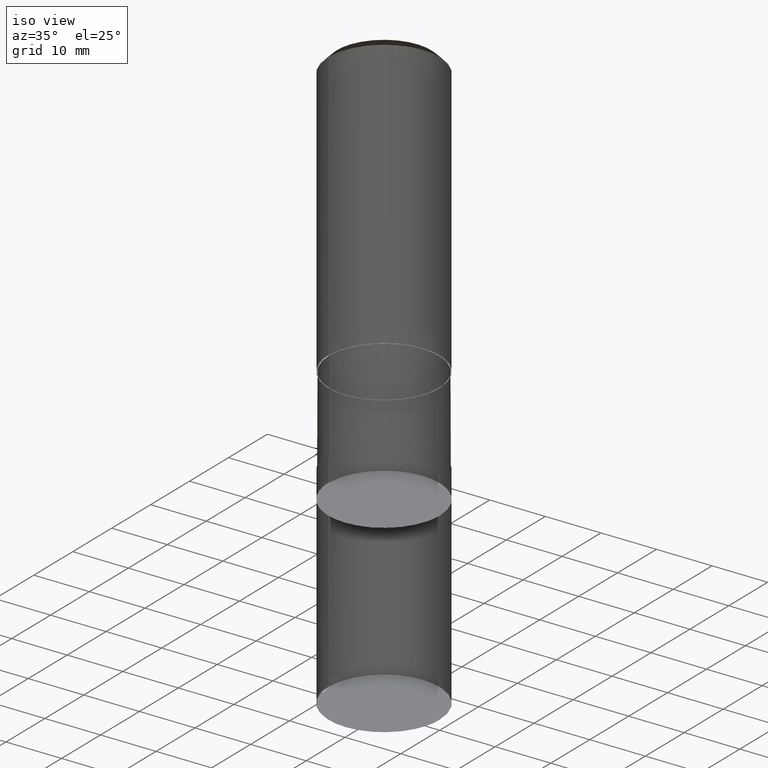
[diagram: clean part render]
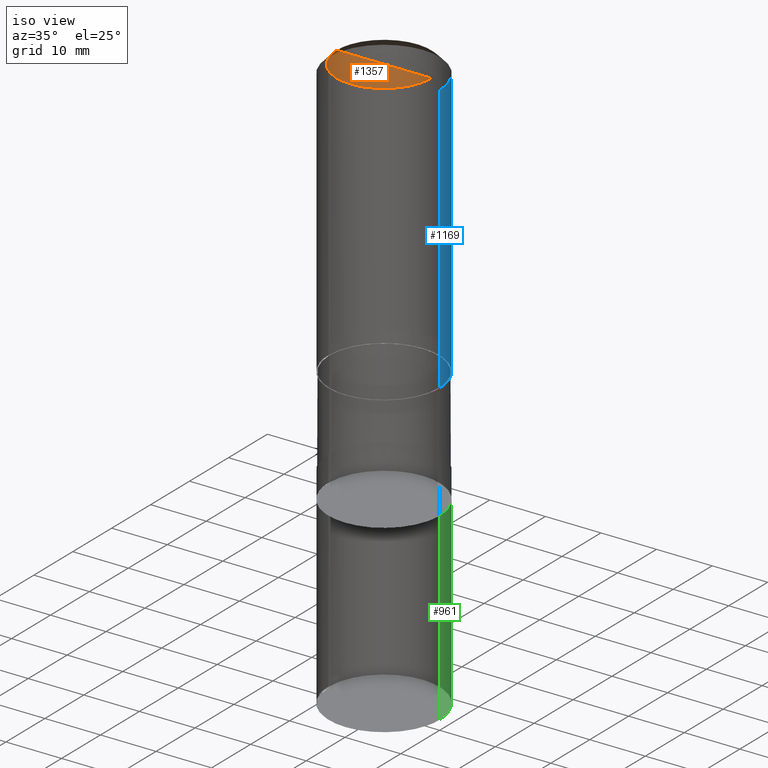
[diagram: same view with three faces highlighted in distinct colors, each labeled with its STEP entity id]
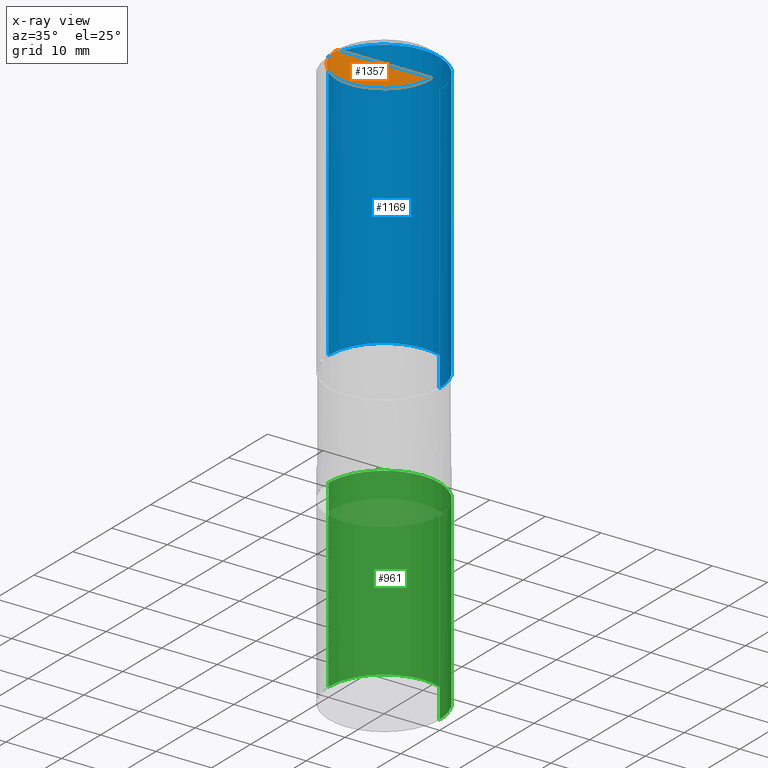
[diagram: x-ray of the same camera — body ghosted, the three highlighted faces saturated]
A machine part, iso view with three faces highlighted in distinct colors.
The next image is the same camera in x-ray (body ghosted, the three faces saturated) — at least one of them is partly hidden behind the body in this view.
Their STEP definitions:

[orange] entity #1357 — the highlighted face is a freeform B-spline surface patch.
#877=CARTESIAN_POINT('',(8.5,0.0,50.0));
#881=CARTESIAN_POINT('',(-8.5,0.0,50.0));
#882=CARTESIAN_POINT('',(0.0,0.0,50.0));
#898=CARTESIAN_POINT('',(-8.5,-8.5,50.0));
#899=CARTESIAN_POINT('',(0.0,-8.5,50.0));
#900=CARTESIAN_POINT('',(8.5,-8.5,50.0));
#1342=(
BOUNDED_SURFACE()
B_SPLINE_SURFACE(1,2,(
(#881,#898,#899,#900,#877),
(#882,#882,#882,#882,#882)
), .UNSPECIFIED.,.F.,.F.,.F.)
B_SPLINE_SURFACE_WITH_KNOTS((2,2),(3,2,3),(
0.0,1.0),(
0.0,0.5,1.0), .UNSPECIFIED.)
GEOMETRIC_REPRESENTATION_ITEM()
RATIONAL_B_SPLINE_SURFACE(((1.0,0.707106781187,1.0,0.707106781187,1.0),
(1.0,0.707106781187,1.0,0.707106781187,1.0)
))
REPRESENTATION_ITEM('')
SURFACE()
);
#1343=(
BOUNDED_CURVE()
B_SPLINE_CURVE(2,(#877,#900,#899,#898,#881),.UNSPECIFIED.,.F.,.F.)
B_SPLINE_CURVE_WITH_KNOTS((3,2,3),
(0.0,0.5,1.0),.UNSPECIFIED.)
CURVE()
GEOMETRIC_REPRESENTATION_ITEM()
RATIONAL_B_SPLINE_CURVE((1.0,0.707106781187,1.0,0.707106781187,1.0))
REPRESENTATION_ITEM('')
);
#1344=(
BOUNDED_CURVE()
B_SPLINE_CURVE(1,(#881,#882),.UNSPECIFIED.,.F.,.F.)
B_SPLINE_CURVE_WITH_KNOTS((2,2),
(0.0,1.0),.UNSPECIFIED.)
CURVE()
GEOMETRIC_REPRESENTATION_ITEM()
RATIONAL_B_SPLINE_CURVE((1.0,1.0))
REPRESENTATION_ITEM('')
);
#1345=(
BOUNDED_CURVE()
B_SPLINE_CURVE(1,(#882,#877),.UNSPECIFIED.,.F.,.F.)
B_SPLINE_CURVE_WITH_KNOTS((2,2),
(0.0,1.0),.UNSPECIFIED.)
CURVE()
GEOMETRIC_REPRESENTATION_ITEM()
RATIONAL_B_SPLINE_CURVE((1.0,1.0))
REPRESENTATION_ITEM('')
);
#1346=VERTEX_POINT('',#877);
#1347=VERTEX_POINT('',#881);
#1348=VERTEX_POINT('',#882);
#1349=EDGE_CURVE('',#1346,#1347,#1343,.T.);
#1350=EDGE_CURVE('',#1347,#1348,#1344,.T.);
#1351=EDGE_CURVE('',#1348,#1346,#1345,.T.);
#1352=ORIENTED_EDGE('',*,*,#1349,.T.);
#1353=ORIENTED_EDGE('',*,*,#1350,.T.);
#1354=ORIENTED_EDGE('',*,*,#1351,.T.);
#1355=EDGE_LOOP('',(#1352,#1353,#1354));
#1356=FACE_OUTER_BOUND('',#1355,.T.);
#1357=ADVANCED_FACE('',(#1356),#1342,.T.);

[blue] entity #1169 — the highlighted face is a freeform B-spline surface patch.
#867=CARTESIAN_POINT('',(10.0,0.0,0.0));
#868=CARTESIAN_POINT('',(10.0,10.0,0.0));
#869=CARTESIAN_POINT('',(0.0,10.0,0.0));
#870=CARTESIAN_POINT('',(-10.0,10.0,0.0));
#871=CARTESIAN_POINT('',(-10.0,0.0,0.0));
#872=CARTESIAN_POINT('',(10.0,0.0,48.5));
#873=CARTESIAN_POINT('',(10.0,10.0,48.5));
#874=CARTESIAN_POINT('',(0.0,10.0,48.5));
#875=CARTESIAN_POINT('',(-10.0,10.0,48.5));
#876=CARTESIAN_POINT('',(-10.0,0.0,48.5));
#1150=(
BOUNDED_SURFACE()
B_SPLINE_SURFACE(1,2,(
(#867,#868,#869,#870,#871),
(#872,#873,#874,#875,#876)
), .UNSPECIFIED.,.F.,.F.,.F.)
B_SPLINE_SURFACE_WITH_KNOTS((2,2),(3,2,3),(
0.0,1.0),(
0.0,0.5,1.0), .UNSPECIFIED.)
GEOMETRIC_REPRESENTATION_ITEM()
RATIONAL_B_SPLINE_SURFACE(((1.0,0.707106781187,1.0,0.707106781187,1.0),
(1.0,0.707106781187,1.0,0.707106781187,1.0)
))
REPRESENTATION_ITEM('')
SURFACE()
);
#1151=(
BOUNDED_CURVE()
B_SPLINE_CURVE(2,(#871,#870,#869,#868,#867),.UNSPECIFIED.,.F.,.F.)
B_SPLINE_CURVE_WITH_KNOTS((3,2,3),
(0.0,0.5,1.0),.UNSPECIFIED.)
CURVE()
GEOMETRIC_REPRESENTATION_ITEM()
RATIONAL_B_SPLINE_CURVE((1.0,0.707106781187,1.0,0.707106781187,1.0))
REPRESENTATION_ITEM('')
);
#1152=(
BOUNDED_CURVE()
B_SPLINE_CURVE(1,(#867,#872),.UNSPECIFIED.,.F.,.F.)
B_SPLINE_CURVE_WITH_KNOTS((2,2),
(0.0,1.0),.UNSPECIFIED.)
CURVE()
GEOMETRIC_REPRESENTATION_ITEM()
RATIONAL_B_SPLINE_CURVE((1.0,1.0))
REPRESENTATION_ITEM('')
);
#1153=(
BOUNDED_CURVE()
B_SPLINE_CURVE(2,(#872,#873,#874,#875,#876),.UNSPECIFIED.,.F.,.F.)
B_SPLINE_CURVE_WITH_KNOTS((3,2,3),
(0.0,0.5,1.0),.UNSPECIFIED.)
CURVE()
GEOMETRIC_REPRESENTATION_ITEM()
RATIONAL_B_SPLINE_CURVE((1.0,0.707106781187,1.0,0.707106781187,1.0))
REPRESENTATION_ITEM('')
);
#1154=(
BOUNDED_CURVE()
B_SPLINE_CURVE(1,(#876,#871),.UNSPECIFIED.,.F.,.F.)
B_SPLINE_CURVE_WITH_KNOTS((2,2),
(0.0,1.0),.UNSPECIFIED.)
CURVE()
GEOMETRIC_REPRESENTATION_ITEM()
RATIONAL_B_SPLINE_CURVE((1.0,1.0))
REPRESENTATION_ITEM('')
);
#1155=VERTEX_POINT('',#867);
#1156=VERTEX_POINT('',#871);
#1157=VERTEX_POINT('',#872);
#1158=VERTEX_POINT('',#876);
#1159=EDGE_CURVE('',#1156,#1155,#1151,.T.);
#1160=EDGE_CURVE('',#1155,#1157,#1152,.T.);
#1161=EDGE_CURVE('',#1157,#1158,#1153,.T.);
#1162=EDGE_CURVE('',#1158,#1156,#1154,.T.);
#1163=ORIENTED_EDGE('',*,*,#1159,.T.);
#1164=ORIENTED_EDGE('',*,*,#1160,.T.);
#1165=ORIENTED_EDGE('',*,*,#1161,.T.);
#1166=ORIENTED_EDGE('',*,*,#1162,.T.);
#1167=EDGE_LOOP('',(#1163,#1164,#1165,#1166));
#1168=FACE_OUTER_BOUND('',#1167,.T.);
#1169=ADVANCED_FACE('',(#1168),#1150,.T.);

[green] entity #961 — the highlighted face is a freeform B-spline surface patch.
#832=CARTESIAN_POINT('',(10.0,0.0,-53.9));
#833=CARTESIAN_POINT('',(10.0,10.0,-53.9));
#834=CARTESIAN_POINT('',(0.0,10.0,-53.9));
#835=CARTESIAN_POINT('',(-10.0,10.0,-53.9));
#836=CARTESIAN_POINT('',(-10.0,0.0,-53.9));
#837=CARTESIAN_POINT('',(10.0,0.0,-20.75));
#838=CARTESIAN_POINT('',(10.0,10.0,-20.75));
#839=CARTESIAN_POINT('',(0.0,10.0,-20.75));
#840=CARTESIAN_POINT('',(-10.0,10.0,-20.75));
#841=CARTESIAN_POINT('',(-10.0,0.0,-20.75));
#942=(
BOUNDED_SURFACE()
B_SPLINE_SURFACE(1,2,(
(#832,#833,#834,#835,#836),
(#837,#838,#839,#840,#841)
), .UNSPECIFIED.,.F.,.F.,.F.)
B_SPLINE_SURFACE_WITH_KNOTS((2,2),(3,2,3),(
0.0,1.0),(
0.0,0.5,1.0), .UNSPECIFIED.)
GEOMETRIC_REPRESENTATION_ITEM()
RATIONAL_B_SPLINE_SURFACE(((1.0,0.707106781187,1.0,0.707106781187,1.0),
(1.0,0.707106781187,1.0,0.707106781187,1.0)
))
REPRESENTATION_ITEM('')
SURFACE()
);
#943=(
BOUNDED_CURVE()
B_SPLINE_CURVE(2,(#836,#835,#834,#833,#832),.UNSPECIFIED.,.F.,.F.)
B_SPLINE_CURVE_WITH_KNOTS((3,2,3),
(0.0,0.5,1.0),.UNSPECIFIED.)
CURVE()
GEOMETRIC_REPRESENTATION_ITEM()
RATIONAL_B_SPLINE_CURVE((1.0,0.707106781187,1.0,0.707106781187,1.0))
REPRESENTATION_ITEM('')
);
#944=(
BOUNDED_CURVE()
B_SPLINE_CURVE(1,(#832,#837),.UNSPECIFIED.,.F.,.F.)
B_SPLINE_CURVE_WITH_KNOTS((2,2),
(0.0,1.0),.UNSPECIFIED.)
CURVE()
GEOMETRIC_REPRESENTATION_ITEM()
RATIONAL_B_SPLINE_CURVE((1.0,1.0))
REPRESENTATION_ITEM('')
);
#945=(
BOUNDED_CURVE()
B_SPLINE_CURVE(2,(#837,#838,#839,#840,#841),.UNSPECIFIED.,.F.,.F.)
B_SPLINE_CURVE_WITH_KNOTS((3,2,3),
(0.0,0.5,1.0),.UNSPECIFIED.)
CURVE()
GEOMETRIC_REPRESENTATION_ITEM()
RATIONAL_B_SPLINE_CURVE((1.0,0.707106781187,1.0,0.707106781187,1.0))
REPRESENTATION_ITEM('')
);
#946=(
BOUNDED_CURVE()
B_SPLINE_CURVE(1,(#841,#836),.UNSPECIFIED.,.F.,.F.)
B_SPLINE_CURVE_WITH_KNOTS((2,2),
(0.0,1.0),.UNSPECIFIED.)
CURVE()
GEOMETRIC_REPRESENTATION_ITEM()
RATIONAL_B_SPLINE_CURVE((1.0,1.0))
REPRESENTATION_ITEM('')
);
#947=VERTEX_POINT('',#832);
#948=VERTEX_POINT('',#836);
#949=VERTEX_POINT('',#837);
#950=VERTEX_POINT('',#841);
#951=EDGE_CURVE('',#948,#947,#943,.T.);
#952=EDGE_CURVE('',#947,#949,#944,.T.);
#953=EDGE_CURVE('',#949,#950,#945,.T.);
#954=EDGE_CURVE('',#950,#948,#946,.T.);
#955=ORIENTED_EDGE('',*,*,#951,.T.);
#956=ORIENTED_EDGE('',*,*,#952,.T.);
#957=ORIENTED_EDGE('',*,*,#953,.T.);
#958=ORIENTED_EDGE('',*,*,#954,.T.);
#959=EDGE_LOOP('',(#955,#956,#957,#958));
#960=FACE_OUTER_BOUND('',#959,.T.);
#961=ADVANCED_FACE('',(#960),#942,.T.);